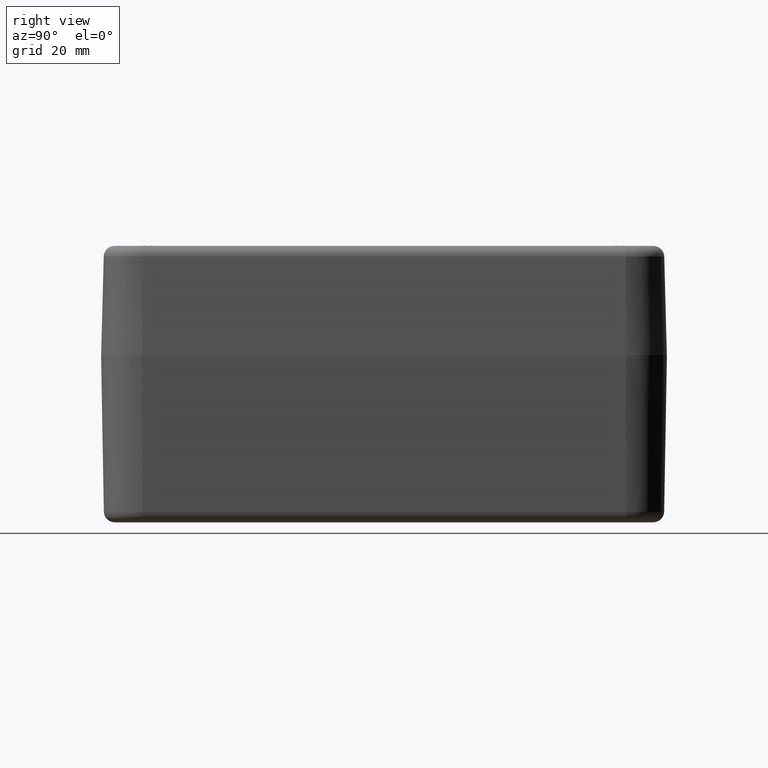
[diagram: clean part render]
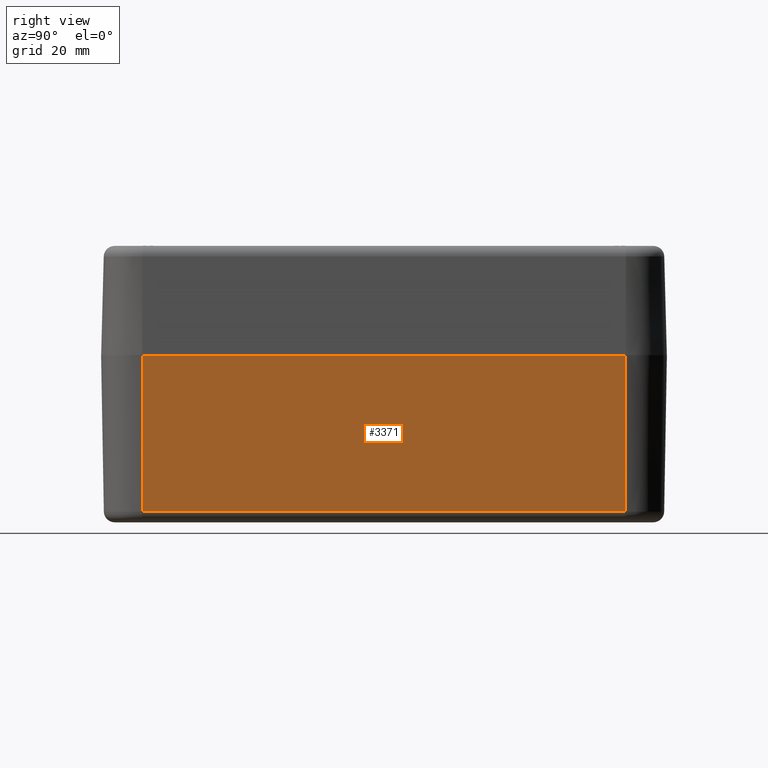
[diagram: same view with one face highlighted and labeled with its STEP entity id]
A machine part, right view. The second image highlights one B-rep face of the part: STEP entity #3371.
In plain terms, the highlighted planar face has unit normal (0.9998, 0, -0.0175).
Its self-contained STEP definition (entity closure, byte-faithful):
#2997=CARTESIAN_POINT('',(17.661751566902900,-16.327564896536401,1.965095187125433));
#2998=VERTEX_POINT('',#2997);
#3016=CARTESIAN_POINT('',(17.661751566902893,72.172435103463599,1.965095187125433));
#3017=VERTEX_POINT('',#3016);
#3025=CARTESIAN_POINT('',(17.661751566902893,72.172435103463599,1.965095187125433));
#3026=DIRECTION('',(0.0,-1.0,0.0));
#3027=VECTOR('',#3026,88.500000000000000);
#3028=LINE('',#3025,#3027);
#3029=EDGE_CURVE('',#3017,#2998,#3028,.T.);
#3329=CARTESIAN_POINT('',(18.161575689624939,-16.327564896536401,30.600000000000005));
#3330=VERTEX_POINT('',#3329);
#3331=CARTESIAN_POINT('',(17.661751566902900,-16.327564896536401,1.965095187125433));
#3332=DIRECTION('',(0.017452406437283,0.0,0.999847695156391));
#3333=VECTOR('',#3332,28.639266711912200);
#3334=LINE('',#3331,#3333);
#3335=EDGE_CURVE('',#2998,#3330,#3334,.T.);
#3348=CARTESIAN_POINT('',(17.627450702821491,72.172435103463599,0.0));
#3349=DIRECTION('',(0.999847695156391,5.017193E-017,-0.017452406437284));
#3350=DIRECTION('',(0.0,1.0,0.0));
#3351=AXIS2_PLACEMENT_3D('',#3348,#3349,#3350);
#3352=PLANE('',#3351);
#3353=ORIENTED_EDGE('',*,*,#3029,.F.);
#3354=CARTESIAN_POINT('',(18.161575689624950,72.172435103463599,30.600000000000005));
#3355=VERTEX_POINT('',#3354);
#3356=CARTESIAN_POINT('',(17.661751566902893,72.172435103463599,1.965095187125433));
#3357=DIRECTION('',(0.017452406437284,0.0,0.999847695156391));
#3358=VECTOR('',#3357,28.639266711912203);
#3359=LINE('',#3356,#3358);
#3360=EDGE_CURVE('',#3017,#3355,#3359,.T.);
#3361=ORIENTED_EDGE('',*,*,#3360,.T.);
#3362=CARTESIAN_POINT('',(18.161575689624950,72.172435103463599,30.600000000000005));
#3363=DIRECTION('',(0.0,-1.0,0.0));
#3364=VECTOR('',#3363,88.500000000000000);
#3365=LINE('',#3362,#3364);
#3366=EDGE_CURVE('',#3355,#3330,#3365,.T.);
#3367=ORIENTED_EDGE('',*,*,#3366,.T.);
#3368=ORIENTED_EDGE('',*,*,#3335,.F.);
#3369=EDGE_LOOP('',(#3353,#3361,#3367,#3368));
#3370=FACE_OUTER_BOUND('',#3369,.T.);
#3371=ADVANCED_FACE('',(#3370),#3352,.T.);